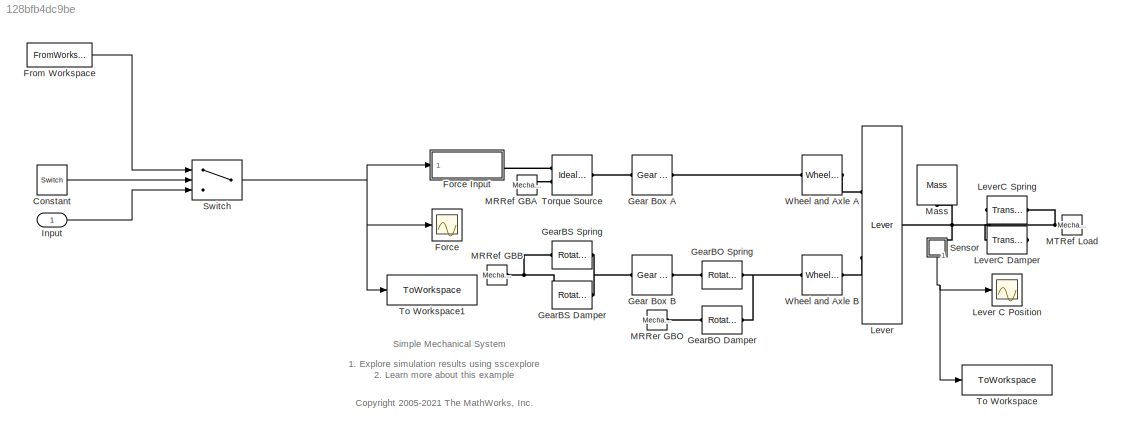
MODEL slx_128bfb4dc9be
KIND model
CONFIG AbsTol = 1e-3
CONFIG EnableMultiTasking = on
CONFIG FixedStep = Ts
CONFIG MaxStep = 0.2
CONFIG MinStep = auto
CONFIG PreLoadFcn = time_force = [0 0.2 0.34 3 3.22 6 6.2 10];\ndata_force = [0 0 12 12 -12 -12 0 0];\nts_force = timeseries(data_force,time_force,'Name','ts_force');
CONFIG RelTol = 1e-3
CONFIG SampleTimeConstraint = Unconstrained
CONFIG SolverName = ode1be
CONFIG StartTime = 0.0
CONFIG StopTime = SimTime
BLOCK [Constant] Constant
  Value = Switch
BLOCK [Scope] Force
  Floating = off
  NumInputPorts = 1
  Ports = [1]
  ScopeSpecificationString = Simulink.scopes.TimeScopeBlockCfg('CurrentConfiguration', extmgr.ConfigurationSet(extmgr.Configuration('Core','General UI',true,'FigureColor',[0.501960784313725 0.501960784313725 0.501960784313725]),extmgr.Configuration('Core','Source UI',true),extmgr.Configuration('Sources','WiredSimulink',true,'DataLoggingVariableName','ScopeData1','DataLoggingSaveFormat','StructureWithTime','DataLoggingLimitDat...<+2688ch>
  Tag = PublishScope
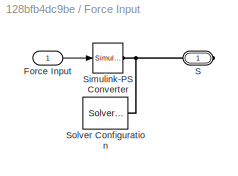
BLOCK [SubSystem] Force Input
  Ports = [1, 0, 0, 0, 0, 0, 1]
  RequestExecContextInheritance = off
BLOCK [Inport] Force Input/Force Input
BLOCK [PMIOPort] Force Input/S
  Side = Right
BLOCK [Reference] Force Input/Simulink-PS Converter  REF=nesl_utility/Simulink-PS
Converter
  Ports = [1, 0, 0, 0, 0, 0, 1]
  SourceBlock = nesl_utility/Simulink-PS\nConverter
  SourceProductBaseCode = SS,PW,VE
  SourceType = Simulink-PS\nConverter
BLOCK [Reference] Force Input/Solver Configuration  REF=nesl_utility/Solver
Configuration
  Ports = [0, 0, 0, 0, 0, 0, 1]
  SourceBlock = nesl_utility/Solver\nConfiguration
  SourceProductBaseCode = SS,PW,VE
  SourceType = Solver\nConfiguration
BLOCK [FromWorkspace] From Workspace
  Commented = on
  VariableName = U
BLOCK [Reference] Gear Box A  REF=fl_lib/Mechanical/Mechanisms/Gear Box
  Ports = [0, 0, 0, 0, 0, 1, 1]
  SourceBlock = fl_lib/Mechanical/Mechanisms/Gear Box
  SourceProductBaseCode = PW,SS,VE
  SourceType = Gear Box
  Tag = Factory Generic
BLOCK [Reference] Gear Box B  REF=fl_lib/Mechanical/Mechanisms/Gear Box
  NameLocation = top
  Ports = [0, 0, 0, 0, 0, 1, 1]
  SourceBlock = fl_lib/Mechanical/Mechanisms/Gear Box
  SourceProductBaseCode = PW,SS,VE
  SourceType = Gear Box
  Tag = Factory Generic
BLOCK [Reference] GearBO Damper  REF=fl_lib/Mechanical/Rotational Elements/Rotational Damper
  Ports = [0, 0, 0, 0, 0, 1, 1]
  SourceBlock = fl_lib/Mechanical/Rotational Elements/Rotational Damper
  SourceProductBaseCode = PW,SS,VE
  SourceType = Rotational Damper
  Tag = Factory Generic
BLOCK [Reference] GearBO Spring  REF=fl_lib/Mechanical/Rotational Elements/Rotational Spring
  Ports = [0, 0, 0, 0, 0, 1, 1]
  SourceBlock = fl_lib/Mechanical/Rotational Elements/Rotational Spring
  SourceProductBaseCode = PW,SS,VE
  SourceType = Rotational Spring
  Tag = Factory Generic
BLOCK [Reference] GearBS Damper  REF=fl_lib/Mechanical/Rotational Elements/Rotational Damper
  Ports = [0, 0, 0, 0, 0, 1, 1]
  SourceBlock = fl_lib/Mechanical/Rotational Elements/Rotational Damper
  SourceProductBaseCode = PW,SS,VE
  SourceType = Rotational Damper
  Tag = Factory Generic
BLOCK [Reference] GearBS Spring  REF=fl_lib/Mechanical/Rotational Elements/Rotational Spring
  NameLocation = top
  Ports = [0, 0, 0, 0, 0, 1, 1]
  SourceBlock = fl_lib/Mechanical/Rotational Elements/Rotational Spring
  SourceProductBaseCode = PW,SS,VE
  SourceType = Rotational Spring
  Tag = Factory Generic
BLOCK [Inport] Input
BLOCK [Reference] Lever  REF=fl_lib/Mechanical/Mechanisms/Lever
  Ports = [0, 0, 0, 0, 0, 2, 1]
  SourceBlock = fl_lib/Mechanical/Mechanisms/Lever
  SourceProductBaseCode = PW,SS,VE
  SourceType = Lever
  Tag = Factory Generic
BLOCK [Scope] Lever C Position
  Floating = off
  NumInputPorts = 1
  Ports = [1]
  ScopeSpecificationString = Simulink.scopes.TimeScopeBlockCfg('CurrentConfiguration', extmgr.ConfigurationSet(extmgr.Configuration('Core','General UI',true,'FigureColor',[0.501960784313725 0.501960784313725 0.501960784313725]),extmgr.Configuration('Core','Source UI',true),extmgr.Configuration('Sources','WiredSimulink',true,'DataLoggingVariableName','ScopeData2','DataLoggingSaveFormat','StructureWithTime','DataLoggingLimitDat...<+2981ch>
  Tag = PublishScope
BLOCK [Reference] LeverC Damper  REF=fl_lib/Mechanical/Translational
Elements/Translational Damper
  Ports = [0, 0, 0, 0, 0, 1, 1]
  SourceBlock = fl_lib/Mechanical/Translational\nElements/Translational Damper
  SourceProductBaseCode = PW,SS,VE
  SourceType = Translational Damper
  Tag = Factory Generic
BLOCK [Reference] LeverC Spring  REF=fl_lib/Mechanical/Translational
Elements/Translational Spring
  NameLocation = top
  Ports = [0, 0, 0, 0, 0, 1, 1]
  SourceBlock = fl_lib/Mechanical/Translational\nElements/Translational Spring
  SourceProductBaseCode = PW,SS,VE
  SourceType = Translational Spring
  Tag = Factory Generic
BLOCK [Reference] MRRef GBA  REF=fl_lib/Mechanical/Rotational Elements/Mechanical
Rotational Reference
  Ports = [0, 0, 0, 0, 0, 1]
  SourceBlock = fl_lib/Mechanical/Rotational Elements/Mechanical\nRotational Reference
  SourceProductBaseCode = PW,SS,VE
  SourceType = Mechanical\nRotational Reference
  Tag = Factory Generic
BLOCK [Reference] MRRef GBB  REF=fl_lib/Mechanical/Rotational Elements/Mechanical
Rotational Reference
  NameLocation = top
  Ports = [0, 0, 0, 0, 0, 1]
  SourceBlock = fl_lib/Mechanical/Rotational Elements/Mechanical\nRotational Reference
  SourceProductBaseCode = PW,SS,VE
  SourceType = Mechanical\nRotational Reference
  Tag = Factory Generic
BLOCK [Reference] MRRer GBO  REF=fl_lib/Mechanical/Rotational Elements/Mechanical
Rotational Reference
  Ports = [0, 0, 0, 0, 0, 1]
  SourceBlock = fl_lib/Mechanical/Rotational Elements/Mechanical\nRotational Reference
  SourceProductBaseCode = PW,SS,VE
  SourceType = Mechanical\nRotational Reference
  Tag = Factory Generic
BLOCK [Reference] MTRef Load  REF=fl_lib/Mechanical/Translational
Elements/Mechanical
Translational
Reference
  Ports = [0, 0, 0, 0, 0, 1]
  SourceBlock = fl_lib/Mechanical/Translational\nElements/Mechanical\nTranslational\nReference
  SourceProductBaseCode = PW,SS,VE
  SourceType = Mechanical\nTranslational\nReference
  Tag = Factory Generic
BLOCK [Reference] Mass  REF=fl_lib/Mechanical/Translational
Elements/Mass
  NameLocation = right
  Ports = [0, 0, 0, 0, 0, 1]
  SourceBlock = fl_lib/Mechanical/Translational\nElements/Mass
  SourceProductBaseCode = PW,SS,VE
  SourceType = Mass
  Tag = Factory Generic
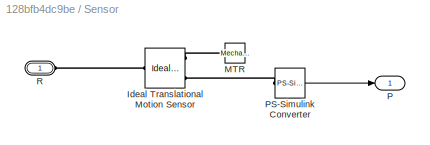
BLOCK [SubSystem] Sensor
  NameLocation = left
  Ports = [0, 1, 0, 0, 0, 1]
  RequestExecContextInheritance = off
BLOCK [Reference] Sensor/Ideal Translational Motion Sensor  REF=fl_lib/Mechanical/Mechanical Sensors/Ideal Translational
Motion Sensor
  Ports = [0, 0, 0, 0, 0, 1, 3]
  SourceBlock = fl_lib/Mechanical/Mechanical Sensors/Ideal Translational\nMotion Sensor
  SourceProductBaseCode = PW,SS,VE
  SourceType = Ideal Translational\nMotion Sensor
  Tag = Factory Generic
BLOCK [Reference] Sensor/MTR  REF=fl_lib/Mechanical/Translational
Elements/Mechanical
Translational
Reference
  NameLocation = top
  Ports = [0, 0, 0, 0, 0, 1]
  SourceBlock = fl_lib/Mechanical/Translational\nElements/Mechanical\nTranslational\nReference
  SourceProductBaseCode = PW,SS,VE
  SourceType = Mechanical\nTranslational\nReference
  Tag = Factory Generic
BLOCK [Outport] Sensor/P
  VectorParamsAs1DForOutWhenUnconnected = off
BLOCK [Reference] Sensor/PS-Simulink Converter  REF=nesl_utility/PS-Simulink
Converter
  Ports = [0, 1, 0, 0, 0, 1]
  SourceBlock = nesl_utility/PS-Simulink\nConverter
  SourceProductBaseCode = SS,PW,VE
  SourceType = PS-Simulink\nConverter
BLOCK [PMIOPort] Sensor/R
  Side = Left
BLOCK [Switch] Switch
  Criteria = u2 > Threshold
  InputSameDT = off
  SaturateOnIntegerOverflow = off
BLOCK [ToWorkspace] To Workspace
  FixptAsFi = on
  MaxDataPoints = inf
  Ports = [1]
  SampleTime = Ts
  VariableName = Position
BLOCK [ToWorkspace] To Workspace1
  FixptAsFi = on
  MaxDataPoints = inf
  Ports = [1]
  SampleTime = Ts
  VariableName = Input
BLOCK [Reference] Torque Source  REF=fl_lib/Mechanical/Mechanical Sources/Ideal Torque Source
  NameLocation = top
  Ports = [0, 0, 0, 0, 0, 1, 2]
  SourceBlock = fl_lib/Mechanical/Mechanical Sources/Ideal Torque Source
  SourceProductBaseCode = PW,SS,VE
  SourceType = Ideal Torque Source
  Tag = Factory Generic
BLOCK [Reference] Wheel and Axle A  REF=fl_lib/Mechanical/Mechanisms/Wheel and Axle
  Ports = [0, 0, 0, 0, 0, 1, 1]
  SourceBlock = fl_lib/Mechanical/Mechanisms/Wheel and Axle
  SourceProductBaseCode = PW,SS,VE
  SourceType = Wheel and Axle
  Tag = Factory Generic
BLOCK [Reference] Wheel and Axle B  REF=fl_lib/Mechanical/Mechanisms/Wheel and Axle
  Ports = [0, 0, 0, 0, 0, 1, 1]
  SourceBlock = fl_lib/Mechanical/Mechanisms/Wheel and Axle
  SourceProductBaseCode = PW,SS,VE
  SourceType = Wheel and Axle
  Tag = Factory Generic
ANNOTATION (root): 1. Explore simulation results using sscexplore 2. Learn more about this example
ANNOTATION (root): <copyright redacted>
ANNOTATION (root): Simple Mechanical System
LINE Constant:1 -> Switch:2
LINE Force Input/Force Input:1 -> Force Input/Simulink-PS Converter:1
LINE From Workspace:1 -> Switch:1
LINE Input:1 -> Switch:3
LINE Sensor/PS-Simulink Converter:1 -> Sensor/P:1
NET Sensor:1 -> Lever C Position:1, To Workspace:1
NET Switch:1 -> Force Input:1, Force:1, To Workspace1:1
PNET net1: Force Input/S:RConn1 -- Force Input/Simulink-PS Converter:RConn1 -- Force Input/Solver Configuration:RConn1
PLINE Force Input:RConn1 -- Torque Source:RConn1
PLINE Gear Box A:LConn1 -- Torque Source:LConn1
PLINE Gear Box A:RConn1 -- Wheel and Axle A:LConn1
PNET net2: Gear Box B:LConn1 -- GearBS Damper:LConn1 -- GearBS Spring:RConn1
PLINE Gear Box B:RConn1 -- GearBO Spring:LConn1
PNET net3: GearBO Damper:LConn1 -- GearBO Spring:RConn1 -- Wheel and Axle B:LConn1
PLINE GearBO Damper:RConn1 -- MRRer GBO:LConn1
PNET net4: GearBS Damper:RConn1 -- GearBS Spring:LConn1 -- MRRef GBB:LConn1
PLINE Lever:LConn1 -- Wheel and Axle A:RConn1
PLINE Lever:LConn2 -- Wheel and Axle B:RConn1
PNET net5: Lever:RConn1 -- LeverC Damper:LConn1 -- LeverC Spring:LConn1 -- Mass:LConn1 -- Sensor:LConn1
PNET net6: LeverC Damper:RConn1 -- LeverC Spring:RConn1 -- MTRef Load:LConn1
PLINE MRRef GBA:LConn1 -- Torque Source:RConn2
PLINE Sensor/Ideal Translational Motion Sensor:LConn1 -- Sensor/R:RConn1
PLINE Sensor/Ideal Translational Motion Sensor:RConn1 -- Sensor/MTR:LConn1
PLINE Sensor/Ideal Translational Motion Sensor:RConn3 -- Sensor/PS-Simulink Converter:LConn1
note: NET lines group one-source signal fan-out (src -> all destinations, sorted); 1:1 wires keep LINE; PNET lines group multi-terminal physical nets as a canonical sorted terminal list (undirected conserving connections); 2-terminal nets keep the pairwise PLINE form
